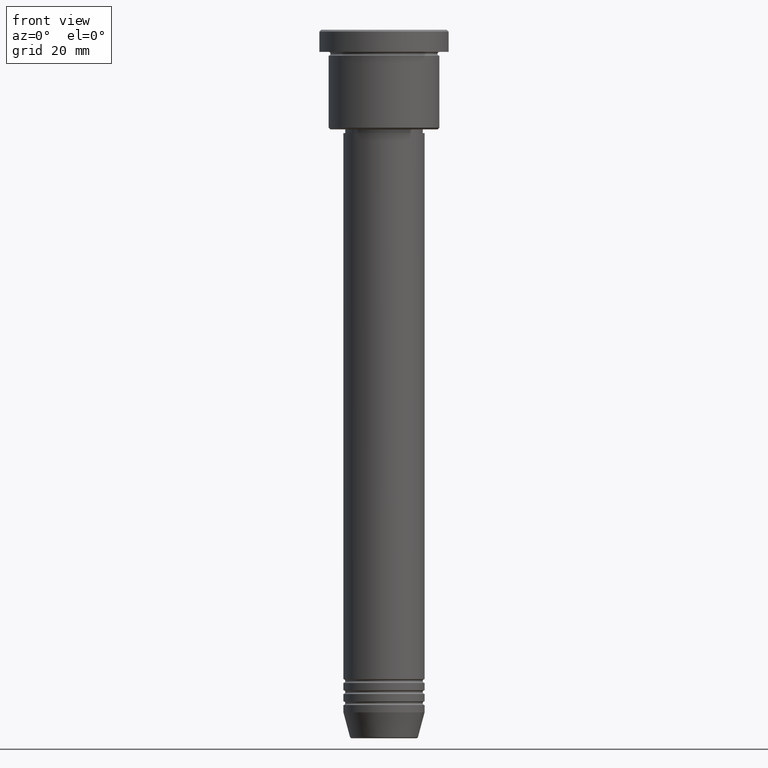
[diagram: clean part render]
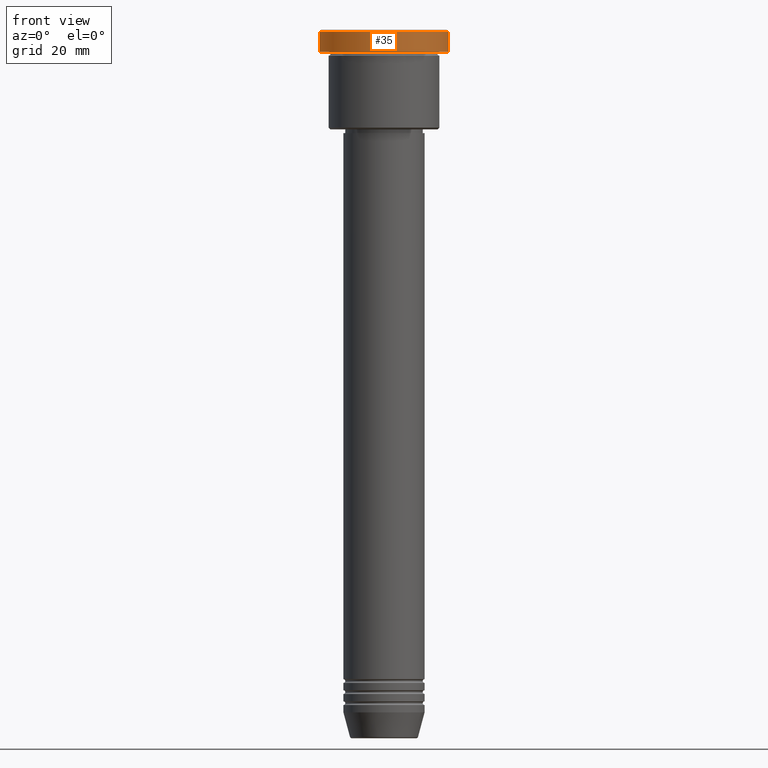
[diagram: same view with one face highlighted and labeled with its STEP entity id]
A machine part, front view. The second image highlights one B-rep face of the part: STEP entity #35.
In plain terms, the highlighted cylindrical surface (partial cylindrical patch) has radius 17.5 mm, axis along (-0, -0, 1).
Its self-contained STEP definition (entity closure, byte-faithful):
#35 = ADVANCED_FACE ( 'NONE', ( #835 ), #128, .T. ) ;
#46 = CARTESIAN_POINT ( 'NONE',  ( -17.50000000000000000, 2.143131898507868248E-15, -0.5000000000000005551 ) ) ;
#48 = VERTEX_POINT ( 'NONE', #397 ) ;
#72 = CARTESIAN_POINT ( 'NONE',  ( -17.50000000000000000, 2.143131898507868248E-15, 0.000000000000000000 ) ) ;
#78 = VERTEX_POINT ( 'NONE', #46 ) ;
#92 = VERTEX_POINT ( 'NONE', #596 ) ;
#124 = ORIENTED_EDGE ( 'NONE', *, *, #515, .T. ) ;
#128 = CYLINDRICAL_SURFACE ( 'NONE', #711, 17.50000000000000000 ) ;
#180 = DIRECTION ( 'NONE',  ( 1.000000000000000000, 0.000000000000000000, 0.000000000000000000 ) ) ;
#195 = CARTESIAN_POINT ( 'NONE',  ( 0.000000000000000000, 0.000000000000000000, 0.000000000000000000 ) ) ;
#203 = AXIS2_PLACEMENT_3D ( 'NONE', #614, #263, #180 ) ;
#218 = DIRECTION ( 'NONE',  ( -0.000000000000000000, -0.000000000000000000, 1.000000000000000000 ) ) ;
#250 = EDGE_CURVE ( 'NONE', #48, #78, #1076, .T. ) ;
#263 = DIRECTION ( 'NONE',  ( -0.000000000000000000, -0.000000000000000000, 1.000000000000000000 ) ) ;
#278 = ORIENTED_EDGE ( 'NONE', *, *, #743, .T. ) ;
#353 = CARTESIAN_POINT ( 'NONE',  ( 17.50000000000000000, 0.000000000000000000, -0.5000000000000005551 ) ) ;
#397 = CARTESIAN_POINT ( 'NONE',  ( -17.50000000000000000, 2.143131898507868248E-15, -5.999999999999995559 ) ) ;
#421 = DIRECTION ( 'NONE',  ( 1.000000000000000000, 0.000000000000000000, 0.000000000000000000 ) ) ;
#490 = ORIENTED_EDGE ( 'NONE', *, *, #250, .F. ) ;
#498 = DIRECTION ( 'NONE',  ( 0.000000000000000000, 0.000000000000000000, -1.000000000000000000 ) ) ;
#515 = EDGE_CURVE ( 'NONE', #92, #692, #874, .T. ) ;
#596 = CARTESIAN_POINT ( 'NONE',  ( 17.50000000000000000, 0.000000000000000000, -5.999999999999995559 ) ) ;
#605 = EDGE_CURVE ( 'NONE', #692, #78, #1045, .T. ) ;
#614 = CARTESIAN_POINT ( 'NONE',  ( 0.000000000000000000, 0.000000000000000000, -5.999999999999995559 ) ) ;
#686 = CARTESIAN_POINT ( 'NONE',  ( 0.000000000000000000, 0.000000000000000000, -0.5000000000000005551 ) ) ;
#692 = VERTEX_POINT ( 'NONE', #353 ) ;
#697 = AXIS2_PLACEMENT_3D ( 'NONE', #686, #498, #421 ) ;
#711 = AXIS2_PLACEMENT_3D ( 'NONE', #195, #923, #942 ) ;
#743 = EDGE_CURVE ( 'NONE', #48, #92, #786, .T. ) ;
#759 = EDGE_LOOP ( 'NONE', ( #490, #278, #124, #1136 ) ) ;
#765 = VECTOR ( 'NONE', #902, 1000.000000000000000 ) ;
#782 = CARTESIAN_POINT ( 'NONE',  ( 17.50000000000000000, 0.000000000000000000, 0.000000000000000000 ) ) ;
#786 = CIRCLE ( 'NONE', #203, 17.50000000000000000 ) ;
#835 = FACE_OUTER_BOUND ( 'NONE', #759, .T. ) ;
#874 = LINE ( 'NONE', #782, #1139 ) ;
#902 = DIRECTION ( 'NONE',  ( -0.000000000000000000, -0.000000000000000000, 1.000000000000000000 ) ) ;
#923 = DIRECTION ( 'NONE',  ( -0.000000000000000000, -0.000000000000000000, 1.000000000000000000 ) ) ;
#942 = DIRECTION ( 'NONE',  ( 1.000000000000000000, 0.000000000000000000, 0.000000000000000000 ) ) ;
#1045 = CIRCLE ( 'NONE', #697, 17.50000000000000000 ) ;
#1076 = LINE ( 'NONE', #72, #765 ) ;
#1136 = ORIENTED_EDGE ( 'NONE', *, *, #605, .T. ) ;
#1139 = VECTOR ( 'NONE', #218, 1000.000000000000000 ) ;